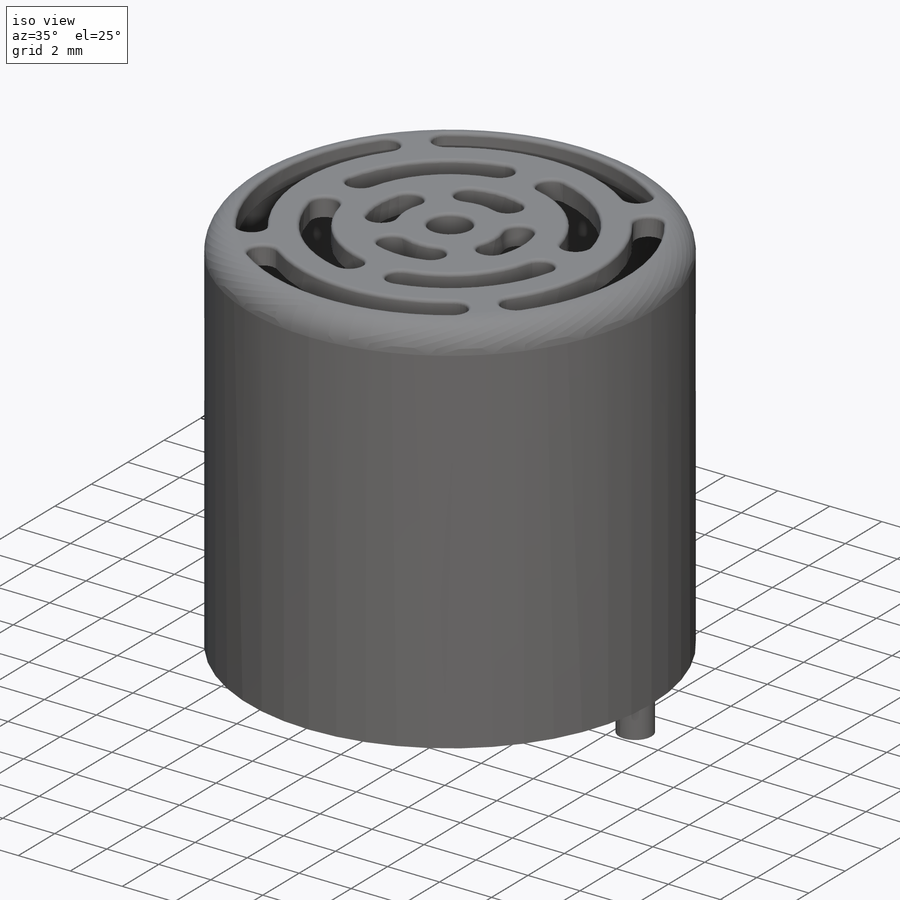
[diagram: iso view]
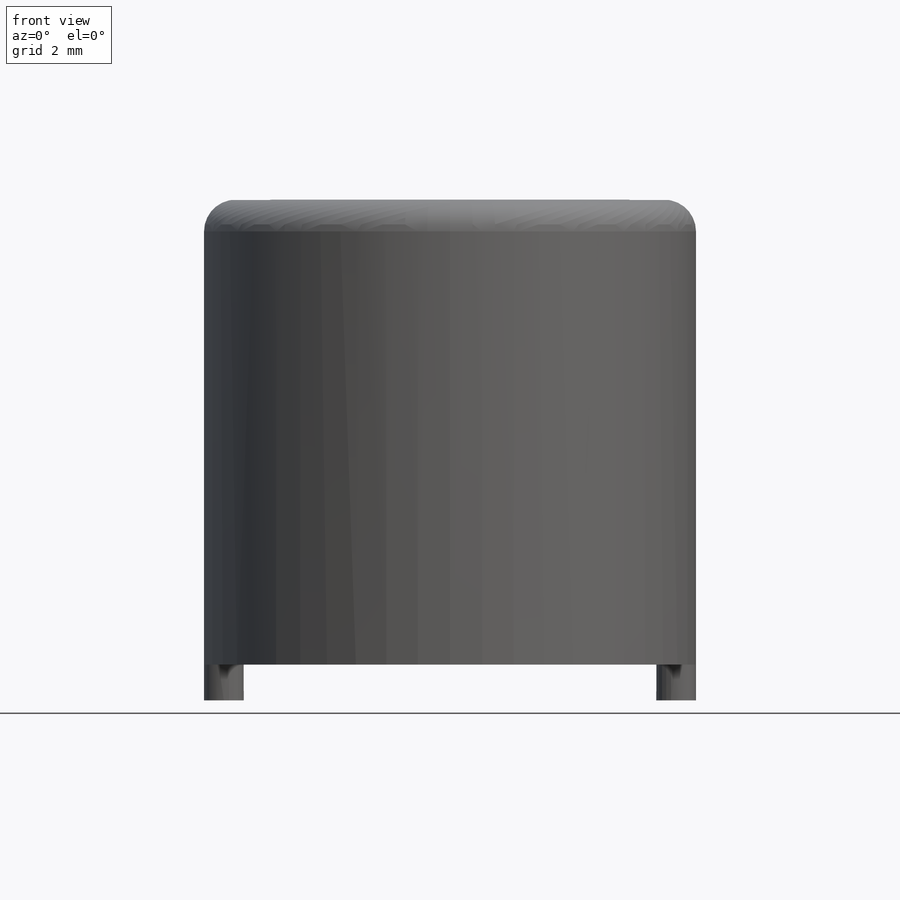
[diagram: front view]
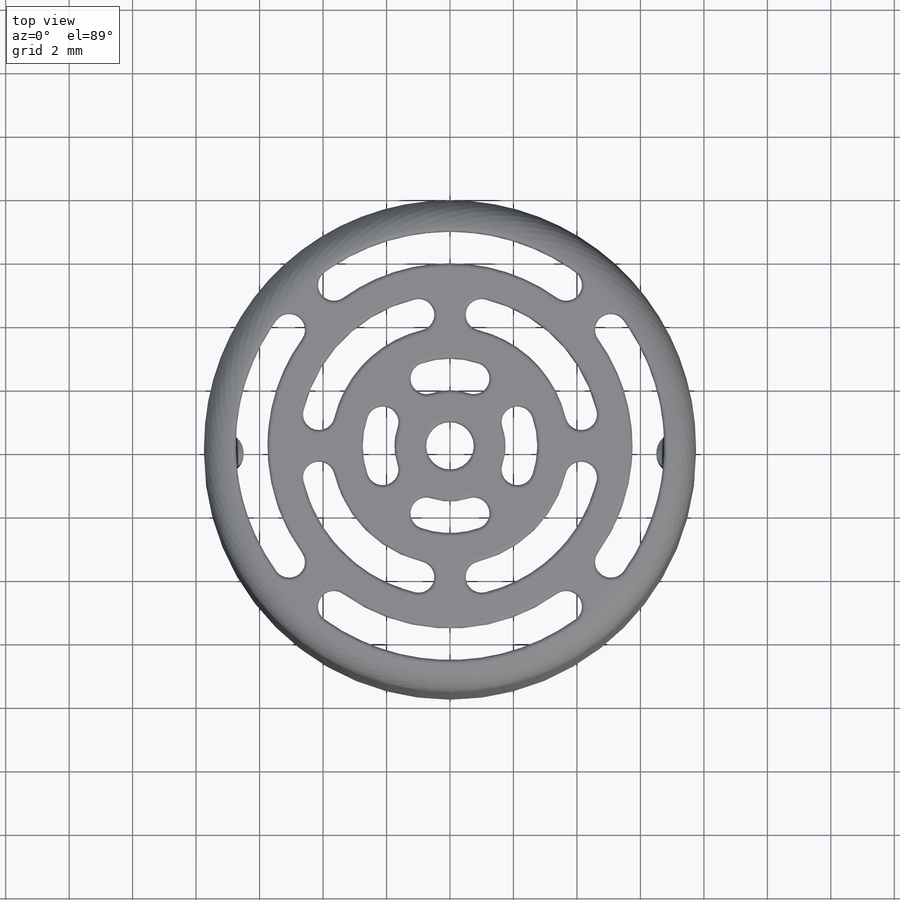
[diagram: top view]
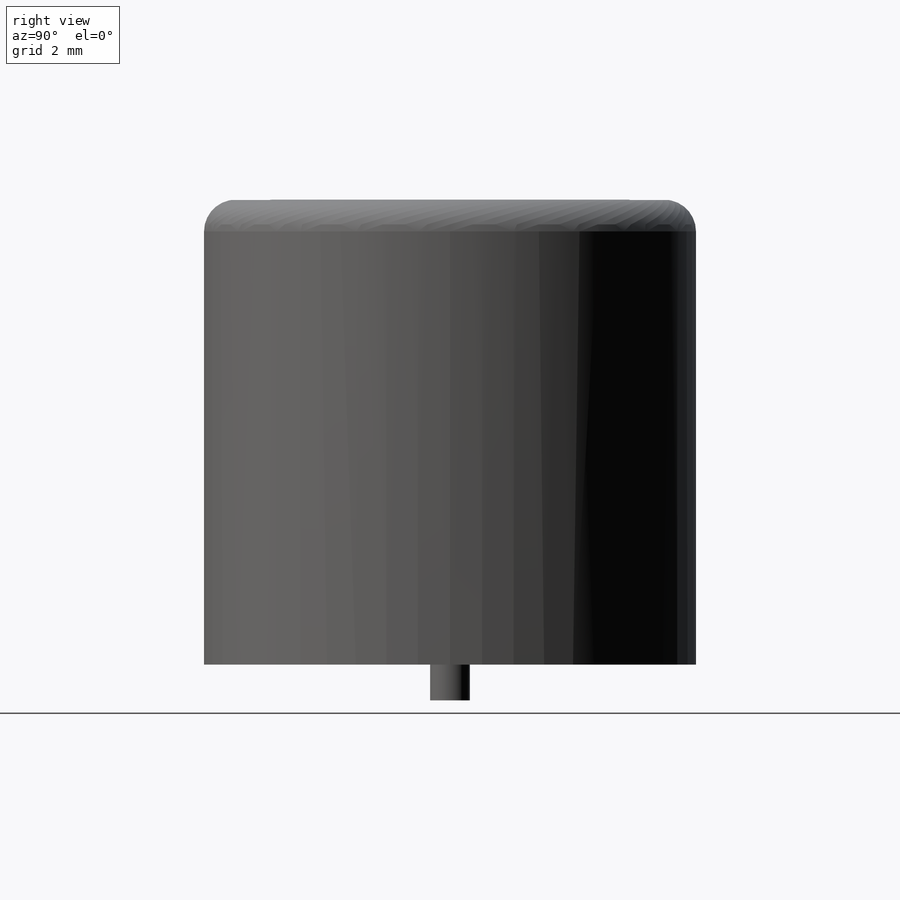
[diagram: right view]
SOLIDWORKS PART (.sldprt)
format: sldprt  version: not decoded by parser v0  size: 514,560 bytes
history: native  units: mm
features: sketch x3, extrude x2, fillet x2, material x1, shell x1, cut_extrude x1, chamfer x1 (+16 scaffold rows collapsed)
feature tree (27):
  scaffold x16  (default folders/planes/origin — collapsed)
  material  "ABS"
  sketch  "Sketch1"  dims[D1=15.5mm]
  extrude  "Extrude1"  Depth=14.65mm
  fillet  "Fillet1"  Radius=1mm
  shell  "Shell1"  Thickness=0.75mm
  sketch  "Sketch2"  dims[c1.D1=11.5mm c1.D2=9.5mm c1.D3=7.5mm c1.D4=5.5mm c1.D5=3.5mm c1.D6=1.5mm c2.D4=5.5mm c2.D5=3.5mm c2.D7=~2.194444mm c2.D8=~0.496904mm c2.D9=~2.194444mm c2.D10=~0.496904mm c2.D11=~4.388889mm c2.D12=~4.388889mm c3.D7=~1.949992mm c3.D8=~1.949992mm c3.D9=~1.986111mm c3.D10=~1.986111mm c4.D9=~1.986111mm c4.D10=~1.986111mm c4.D11=~1.191662mm c5.D11=45.0deg]
  cut_extrude  "Extrude2"  [1 undecoded]
  sketch  "Sketch3"  dims[D1=1.25mm D2=1.25mm]
  extrude  "Extrude3"  Depth=1.125mm
  chamfer  "Chamfer1"  Distance=0.5mm Angle=45deg
  fillet  "Fillet2"  Radius=0.125mm
decode coverage: 9 of 10 modeling features carry decoded parameters
note: ~ marks probable driven/reference dimensions
note: 1 parameter value undecoded
note: suppression state not decoded; provenance and decode notes live in map.json
